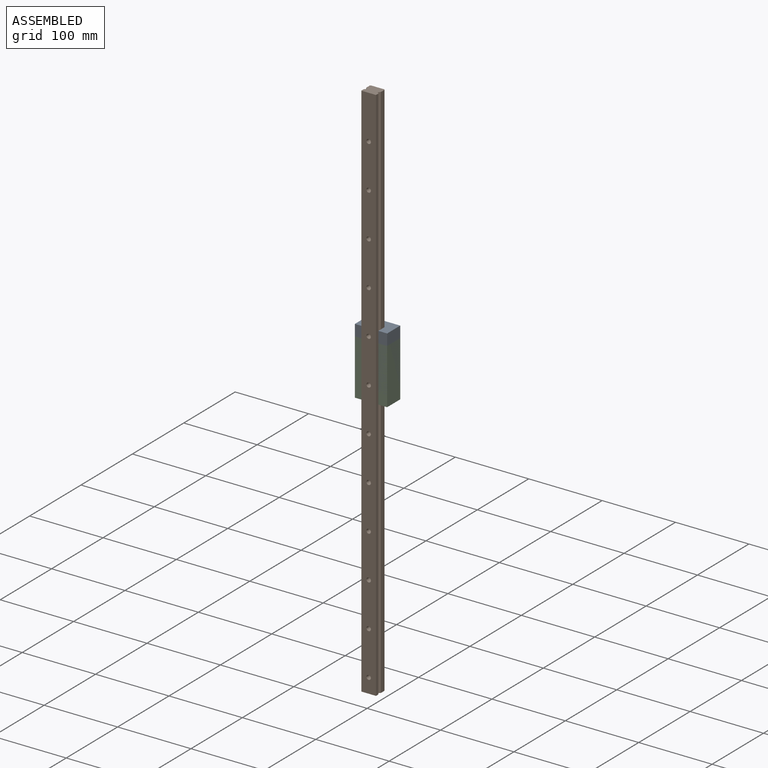
[diagram: assembled view]
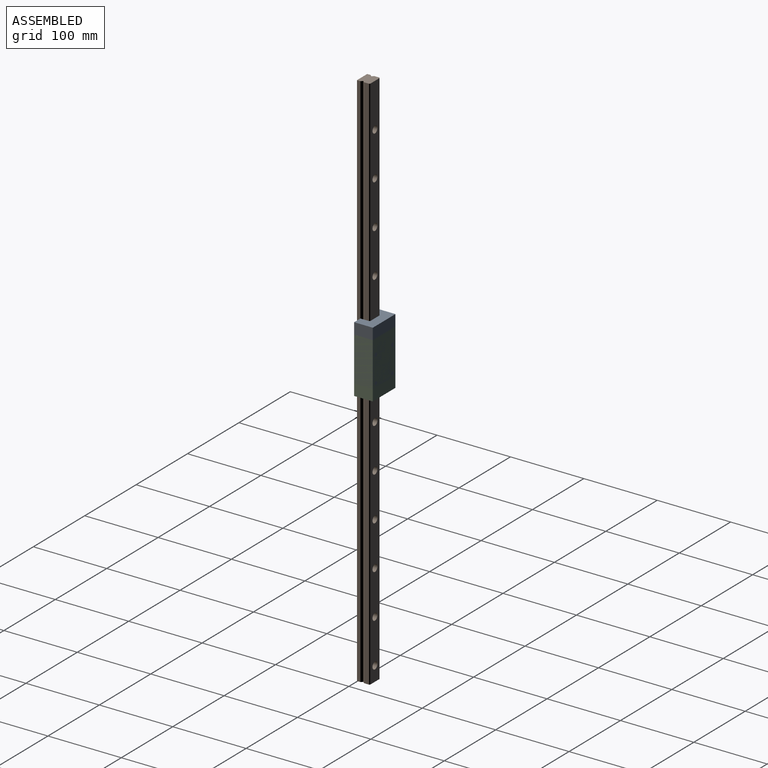
[diagram: assembled view, second angle]
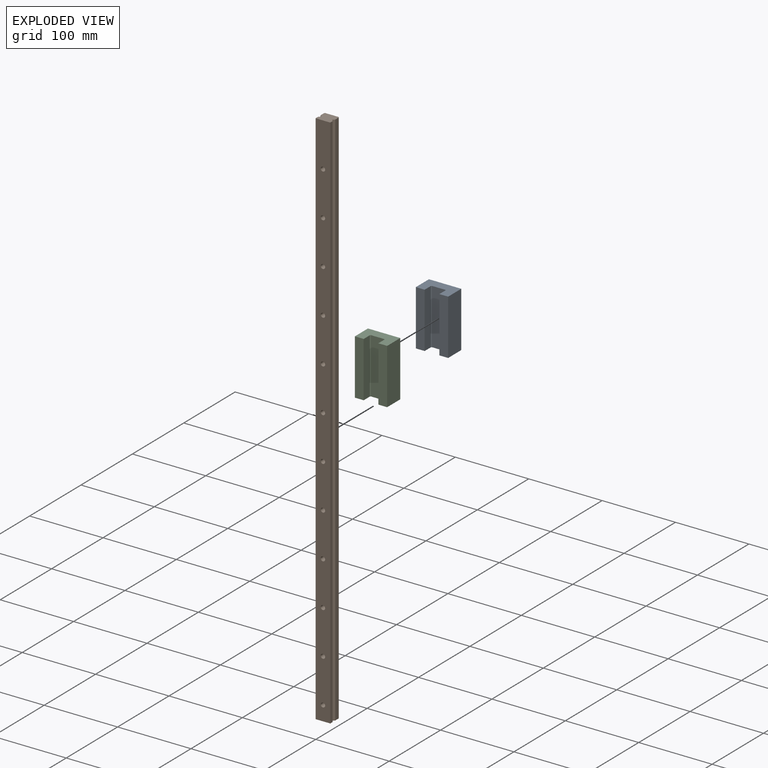
[diagram: exploded view]
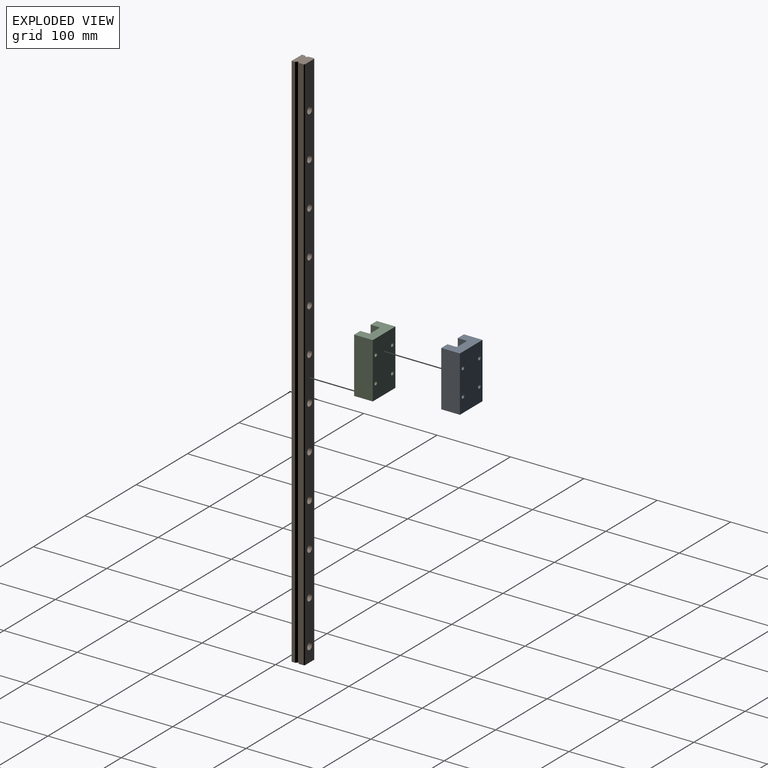
[diagram: exploded view, second angle]
ASSEMBLY  parts=3 mates=4
PART A: 20 faces, bbox 44x25.4x75.5 mm
  f0: plane 75.5x44mm, normal (0,1,0), area 3243.5mm2, adj f1,f9,f10,f11,f12,f14,f16,f18
  f1: plane 75.5x25.4mm, normal (-1,0,0), area 1917.7mm2, adj f0,f2,f10,f11
  f2: plane 75.5x12mm, normal (0,-1,0), area 906mm2, adj f1,f3,f10,f11
  f3: plane 75.5x11.9mm, normal (1,0,0), area 898.4mm2, adj f2,f4,f10,f11
  f4: plane 75.5x1mm, normal (0.71,-0.71,0), area 106.8mm2, adj f3,f5,f10,f11
  f5: plane 75.5x18mm, normal (0,-1,0), area 1359mm2, adj f4,f6,f10,f11
  f6: plane 75.5x1mm, normal (-0.71,-0.71,0), area 106.8mm2, adj f5,f7,f10,f11
  f7: plane 75.5x11.9mm, normal (-1,0,0), area 898.4mm2, adj f6,f8,f10,f11
  f8: plane 75.5x12mm, normal (0,-1,0), area 906mm2, adj f7,f9,f10,f11
  f9: plane 75.5x25.4mm, normal (1,0,0), area 1917.7mm2, adj f0,f8,f10,f11
  f10: plane 44x25.4mm, normal (0,0,1), area 860.6mm2, adj f0,f1,f2,f3,f4,f5,f6,f7
  f11: plane 44x25.4mm, normal (0,0,-1), area 860.6mm2, adj f0,f1,f2,f3,f4,f5,f6,f7
  f12: cylinder r=2.5mm len=5mm, axis (0,1,0), area 78.5mm2, adj f0,f13
  f13: plane 5x5mm, normal (0,1,0), area 19.6mm2, adj f12
  f14: cylinder r=2.5mm len=5mm, axis (0,1,0), area 78.5mm2, adj f0,f15
  f15: plane 5x5mm, normal (0,1,0), area 19.6mm2, adj f14
  f16: cylinder r=2.5mm len=5mm, axis (0,1,0), area 78.5mm2, adj f0,f17
  f17: plane 5x5mm, normal (0,1,0), area 19.6mm2, adj f16
  f18: cylinder r=2.5mm len=5mm, axis (0,1,0), area 78.5mm2, adj f0,f19
  f19: plane 5x5mm, normal (0,1,0), area 19.6mm2, adj f18
PART B: 50 faces, bbox 20x17.5x740 mm
  f0: plane 740x2.5mm, normal (0.72,-0.69,0), area 2566.1mm2, adj f1,f11,f12,f13
  f1: plane 740x6.9mm, normal (1,0,0), area 5106mm2, adj f0,f2,f12,f13
  f2: plane 740x1mm, normal (0.71,0.71,0), area 1046.5mm2, adj f1,f3,f12,f13
  f3: plane 740x18mm, normal (0,1,0), area 12469.4mm2, adj f2,f4,f12,f13,f14,f17,f20,f23
  f4: plane 740x1mm, normal (-0.71,0.71,0), area 1046.5mm2, adj f3,f5,f12,f13
  f5: plane 740x6.9mm, normal (-1,0,0), area 5106mm2, adj f4,f6,f12,f13
  f6: plane 740x2.5mm, normal (-0.72,-0.69,0), area 2566.1mm2, adj f5,f7,f12,f13
  f7: plane 740x2.5mm, normal (-0.72,0.69,0), area 2566.1mm2, adj f6,f8,f12,f13
  f8: plane 740x4.6mm, normal (-1,0,0), area 3404mm2, adj f7,f9,f12,f13
  f9: plane 740x20mm, normal (0,-1,0), area 14460.7mm2, adj f8,f10,f12,f13,f16,f19,f22,f25
  f10: plane 740x4.6mm, normal (1,0,0), area 3404mm2, adj f9,f11,f12,f13
  f11: plane 740x2.5mm, normal (0.72,0.69,0), area 2566.1mm2, adj f0,f10,f12,f13
  f12: plane 20x17.5mm, normal (0,0,1), area 337mm2, adj f0,f1,f2,f3,f4,f5,f6,f7
  f13: plane 20x17.5mm, normal (0,0,-1), area 337mm2, adj f0,f1,f2,f3,f4,f5,f6,f7
  f14: cylinder r=4.75mm len=9.5mm, axis (0,1,0), area 253.7mm2, adj f3,f15
  f15: plane 9.5x9.5mm, normal (0,1,0), area 42.6mm2, adj f14,f16
  f16: cylinder r=3mm len=9mm, axis (0,1,0), area 169.6mm2, adj f9,f15
  f17: cylinder r=4.75mm len=9.5mm, axis (0,1,0), area 253.7mm2, adj f3,f18
  f18: plane 9.5x9.5mm, normal (0,1,0), area 42.6mm2, adj f17,f19
  f19: cylinder r=3mm len=9mm, axis (0,1,0), area 169.6mm2, adj f9,f18
  f20: cylinder r=4.75mm len=9.5mm, axis (0,1,0), area 253.7mm2, adj f3,f21
  f21: plane 9.5x9.5mm, normal (0,1,0), area 42.6mm2, adj f20,f22
  f22: cylinder r=3mm len=9mm, axis (0,1,0), area 169.6mm2, adj f9,f21
  f23: cylinder r=4.75mm len=9.5mm, axis (0,1,0), area 253.7mm2, adj f3,f24
  f24: plane 9.5x9.5mm, normal (0,1,0), area 42.6mm2, adj f23,f25
  f25: cylinder r=3mm len=9mm, axis (0,1,0), area 169.6mm2, adj f9,f24
  f26: cylinder r=4.75mm len=9.5mm, axis (0,1,0), area 253.7mm2, adj f3,f27
  f27: plane 9.5x9.5mm, normal (0,1,0), area 42.6mm2, adj f26,f28
  f28: cylinder r=3mm len=9mm, axis (0,1,0), area 169.6mm2, adj f9,f27
  f29: cylinder r=4.75mm len=9.5mm, axis (0,1,0), area 253.7mm2, adj f3,f30
  f30: plane 9.5x9.5mm, normal (0,1,0), area 42.6mm2, adj f29,f31
  f31: cylinder r=3mm len=9mm, axis (0,1,0), area 169.6mm2, adj f9,f30
  f32: cylinder r=4.75mm len=9.5mm, axis (0,1,0), area 253.7mm2, adj f3,f33
  f33: plane 9.5x9.5mm, normal (0,1,0), area 42.6mm2, adj f32,f34
  f34: cylinder r=3mm len=9mm, axis (0,1,0), area 169.6mm2, adj f9,f33
  f35: cylinder r=4.75mm len=9.5mm, axis (0,1,0), area 253.7mm2, adj f3,f36
  f36: plane 9.5x9.5mm, normal (0,1,0), area 42.6mm2, adj f35,f37
  f37: cylinder r=3mm len=9mm, axis (0,1,0), area 169.6mm2, adj f9,f36
  f38: cylinder r=4.75mm len=9.5mm, axis (0,1,0), area 253.7mm2, adj f3,f39
  f39: plane 9.5x9.5mm, normal (0,1,0), area 42.6mm2, adj f38,f40
  f40: cylinder r=3mm len=9mm, axis (0,1,0), area 169.6mm2, adj f9,f39
  f41: cylinder r=4.75mm len=9.5mm, axis (0,1,0), area 253.7mm2, adj f3,f42
  f42: plane 9.5x9.5mm, normal (0,1,0), area 42.6mm2, adj f41,f43
  f43: cylinder r=3mm len=9mm, axis (0,1,0), area 169.6mm2, adj f9,f42
  f44: cylinder r=4.75mm len=9.5mm, axis (0,1,0), area 253.7mm2, adj f3,f45
  f45: plane 9.5x9.5mm, normal (0,1,0), area 42.6mm2, adj f44,f46
  f46: cylinder r=3mm len=9mm, axis (0,1,0), area 169.6mm2, adj f9,f45
  f47: cylinder r=4.75mm len=9.5mm, axis (0,1,0), area 253.7mm2, adj f3,f48
  f48: plane 9.5x9.5mm, normal (0,1,0), area 42.6mm2, adj f47,f49
  f49: cylinder r=3mm len=9mm, axis (0,1,0), area 169.6mm2, adj f9,f48
PART C: same geometry as A
PLACE A t=(-99.15,147.51,372.25)mm
PLACE B at identity
PLACE C t=(-99.15,147.51,356.95)mm
MATE planar C.f5 <-> B.f3  axis (0,-1,0) through (-7.08,30.61,394.7)mm
MATE planar C.f3 <-> B.f5  axis (1,0,0) through (-17.08,23.66,394.7)mm
MATE planar A.f5 <-> B.f3  axis (0,-1,0) through (-7.08,30.61,410)mm
MATE planar A.f3 <-> B.f5  axis (1,0,0) through (-17.08,23.66,410)mm
